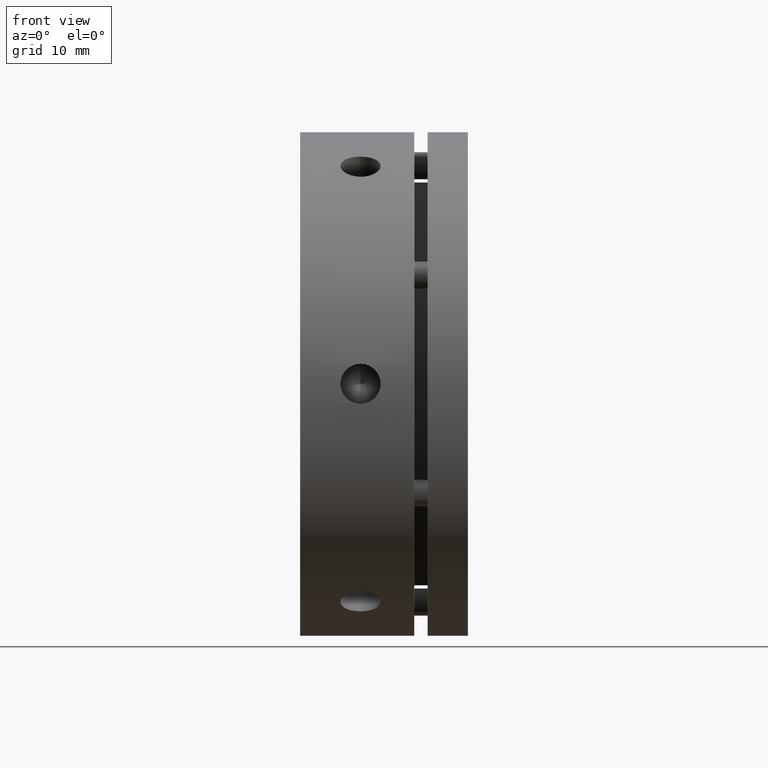
[diagram: clean part render]
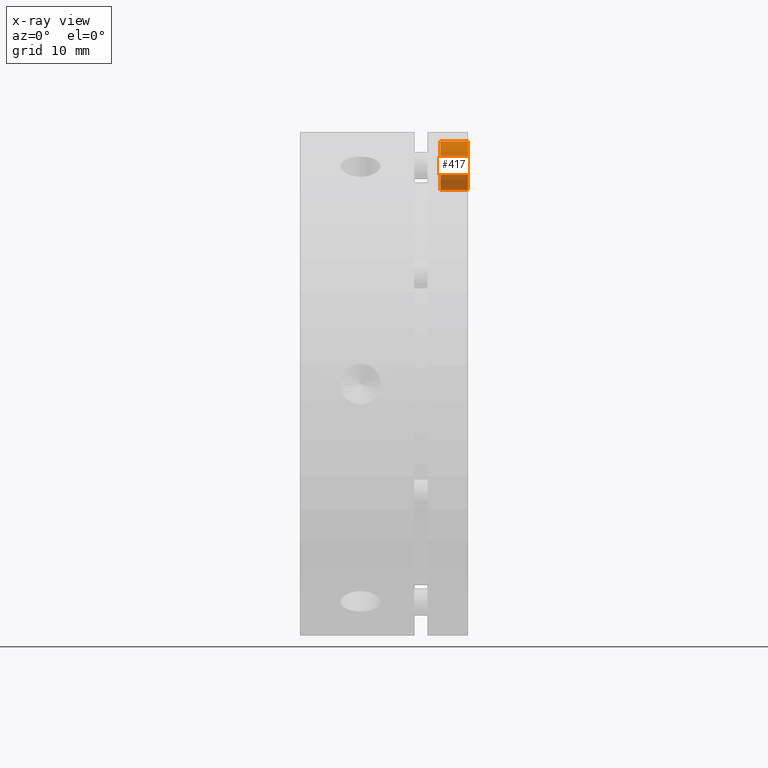
[diagram: x-ray — body ghosted, one internal face saturated and labeled with its STEP entity id]
A machine part, front view, then the same camera in x-ray: the body is ghosted and one INTERNAL B-rep face — a face not visible from any outside direction — is saturated and labeled: STEP entity #417.
In plain terms, the highlighted cylindrical surface (edge-blend (fillet) strip) has radius 3.65 mm, axis along (1, 0, 0).
Its self-contained STEP definition (entity closure, byte-faithful):
#217 = ORIENTED_EDGE ( 'NONE', *, *, #3979, .F. ) ;
#231 = ORIENTED_EDGE ( 'NONE', *, *, #4090, .F. ) ;
#275 = ORIENTED_EDGE ( 'NONE', *, *, #3978, .T. ) ;
#316 = ORIENTED_EDGE ( 'NONE', *, *, #3977, .F. ) ;
#417 = ADVANCED_FACE ( 'NONE', ( #3326 ), #3330, .F. ) ;
#547 = AXIS2_PLACEMENT_3D ( 'NONE', #4201, #4199, #4194 ) ;
#950 = VERTEX_POINT ( 'NONE', #1862 ) ;
#951 = VERTEX_POINT ( 'NONE', #1863 ) ;
#953 = VERTEX_POINT ( 'NONE', #1865 ) ;
#956 = VERTEX_POINT ( 'NONE', #1868 ) ;
#1862 = CARTESIAN_POINT ( 'NONE',  ( 24.99999999999999300, 4.469960816887838400E-016, 36.15000000000001300 ) ) ;
#1863 = CARTESIAN_POINT ( 'NONE',  ( 24.99999999999999300, 0.0000000000000000000, 28.85000000000001600 ) ) ;
#1865 = CARTESIAN_POINT ( 'NONE',  ( 20.89999999999999100, 0.0000000000000000000, 28.85000000000001600 ) ) ;
#1868 = CARTESIAN_POINT ( 'NONE',  ( 20.89999999999999100, 4.469960816887838400E-016, 36.15000000000001300 ) ) ;
#2341 = CARTESIAN_POINT ( 'NONE',  ( 22.94999999999998900, 4.469960816887839400E-016, 36.15000000000001300 ) ) ;
#2365 = DIRECTION ( 'NONE',  ( 1.000000000000000000, 0.0000000000000000000, 0.0000000000000000000 ) ) ;
#2376 = CARTESIAN_POINT ( 'NONE',  ( 24.99999999999999300, 0.0000000000000000000, 32.50000000000001400 ) ) ;
#2378 = DIRECTION ( 'NONE',  ( -1.000000000000000000, -0.0000000000000000000, -0.0000000000000000000 ) ) ;
#2380 = DIRECTION ( 'NONE',  ( 0.0000000000000000000, 0.0000000000000000000, -1.000000000000000000 ) ) ;
#2387 = CARTESIAN_POINT ( 'NONE',  ( 20.89999999999999100, 0.0000000000000000000, 32.50000000000001400 ) ) ;
#2389 = DIRECTION ( 'NONE',  ( 1.000000000000000000, 0.0000000000000000000, 0.0000000000000000000 ) ) ;
#2391 = DIRECTION ( 'NONE',  ( 0.0000000000000000000, 0.0000000000000000000, -1.000000000000000000 ) ) ;
#2535 = CARTESIAN_POINT ( 'NONE',  ( 22.94999999999998900, 0.0000000000000000000, 28.85000000000001600 ) ) ;
#2536 = DIRECTION ( 'NONE',  ( 1.000000000000000000, 0.0000000000000000000, 0.0000000000000000000 ) ) ;
#2647 = CIRCLE ( 'NONE', #4013, 3.650000000000000400 ) ;
#2648 = CIRCLE ( 'NONE', #4014, 3.650000000000000400 ) ;
#2649 = LINE ( 'NONE', #2341, #2651 ) ;
#2651 = VECTOR ( 'NONE', #2365, 1000.000000000000000 ) ;
#2720 = LINE ( 'NONE', #2535, #2722 ) ;
#2722 = VECTOR ( 'NONE', #2536, 1000.000000000000000 ) ;
#3326 = FACE_OUTER_BOUND ( 'NONE', #4751, .T. ) ;
#3330 = CYLINDRICAL_SURFACE ( 'NONE', #547, 3.650000000000000400 ) ;
#3977 = EDGE_CURVE ( 'NONE', #951, #950, #2647, .T. ) ;
#3978 = EDGE_CURVE ( 'NONE', #956, #950, #2649, .T. ) ;
#3979 = EDGE_CURVE ( 'NONE', #956, #953, #2648, .T. ) ;
#4013 = AXIS2_PLACEMENT_3D ( 'NONE', #2376, #2378, #2380 ) ;
#4014 = AXIS2_PLACEMENT_3D ( 'NONE', #2387, #2389, #2391 ) ;
#4090 = EDGE_CURVE ( 'NONE', #953, #951, #2720, .T. ) ;
#4194 = DIRECTION ( 'NONE',  ( 0.0000000000000000000, 0.0000000000000000000, -1.000000000000000000 ) ) ;
#4199 = DIRECTION ( 'NONE',  ( 1.000000000000000000, 0.0000000000000000000, 0.0000000000000000000 ) ) ;
#4201 = CARTESIAN_POINT ( 'NONE',  ( 22.94999999999998900, 0.0000000000000000000, 32.50000000000001400 ) ) ;
#4751 = EDGE_LOOP ( 'NONE', ( #217, #275, #316, #231 ) ) ;